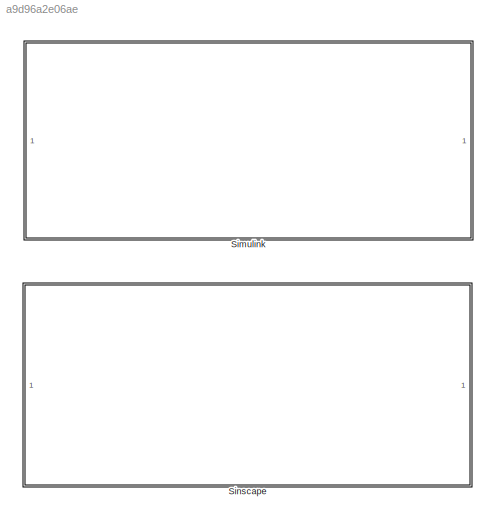
MODEL slx_a9d96a2e06ae
KIND model
CONFIG AbsTol = auto
CONFIG EnableMultiTasking = off
CONFIG FixedStep = auto
CONFIG MaxStep = auto
CONFIG MinStep = auto
CONFIG RelTol = 1e-3
CONFIG SampleTimeConstraint = Unconstrained
CONFIG SolverName = VariableStepAuto
CONFIG StartTime = 0.0
CONFIG StopTime = 0.01
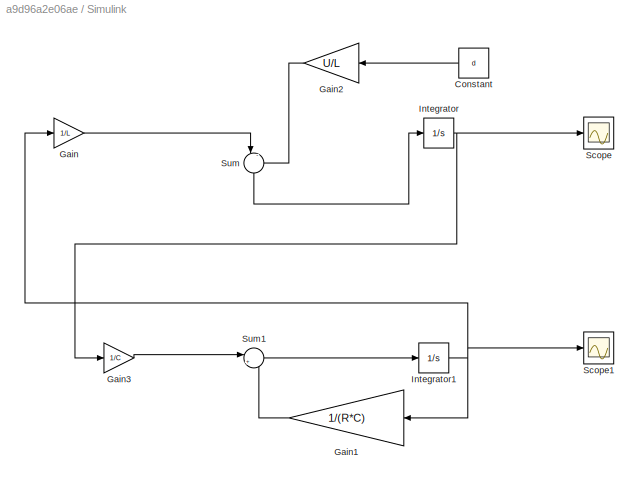
BLOCK [SubSystem] Simulink
BLOCK [Constant] Simulink/Constant
  NameLocation = top
  Value = d
BLOCK [Gain] Simulink/Gain
  Gain = 1/L
BLOCK [Gain] Simulink/Gain1
  Gain = 1/(R*C)
BLOCK [Gain] Simulink/Gain2
  Gain = U/L
BLOCK [Gain] Simulink/Gain3
  Gain = 1/C
BLOCK [Integrator] Simulink/Integrator
BLOCK [Integrator] Simulink/Integrator1
BLOCK [Scope] Simulink/Scope
  Floating = off
  NumInputPorts = 1
  ScopeSpecificationString = Simulink.scopes.TimeScopeBlockCfg('CurrentConfiguration', extmgr.ConfigurationSet(extmgr.Configuration('Core','General UI',true),extmgr.Configuration('Core','Source UI',true),extmgr.Configuration('Sources','WiredSimulink',true,'DataLoggingVariableName','ScopeData1'),extmgr.Configuration('Visuals','Time Domain',true,'SerializedDisplays',{struct('MinYLimReal','0.89007','MaxYLimReal','1.39913','YLabe...<+1419ch>
BLOCK [Scope] Simulink/Scope1
  Floating = off
  NumInputPorts = 1
  ScopeSpecificationString = Simulink.scopes.TimeScopeBlockCfg('CurrentConfiguration', extmgr.ConfigurationSet(extmgr.Configuration('Core','General UI',true),extmgr.Configuration('Core','Source UI',true),extmgr.Configuration('Sources','WiredSimulink',true,'DataLoggingVariableName','ScopeData2'),extmgr.Configuration('Visuals','Time Domain',true,'SerializedDisplays',{struct('MinYLimReal','-1.66913','MaxYLimReal','15.02219','YLa...<+1426ch>
BLOCK [Sum] Simulink/Sum
  Inputs = |-+
  NameLocation = left
BLOCK [Sum] Simulink/Sum1
  Inputs = |+-
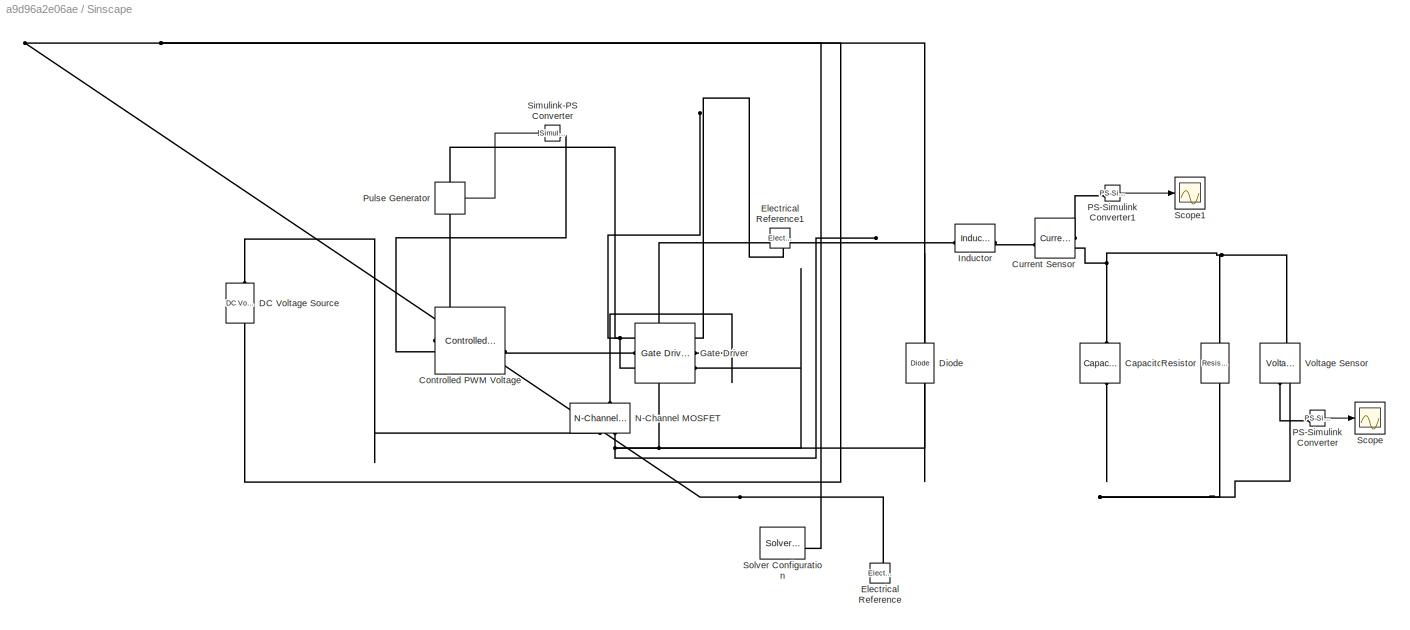
BLOCK [SubSystem] Sinscape
BLOCK [Reference] Sinscape/Capacitor  REF=fl_lib/Electrical/Electrical Elements/Capacitor
  NameLocation = left
  SourceBlock = fl_lib/Electrical/Electrical Elements/Capacitor
  SourceType = Capacitor
BLOCK [Reference] Sinscape/Controlled PWM Voltage  REF=ee_lib/Integrated Circuits/Controlled PWM
Voltage
  SourceBlock = ee_lib/Integrated Circuits/Controlled PWM\nVoltage
  SourceType = Controlled PWM\nVoltage
BLOCK [Reference] Sinscape/Current Sensor  REF=fl_lib/Electrical/Electrical Sensors/Current Sensor
  SourceBlock = fl_lib/Electrical/Electrical Sensors/Current Sensor
  SourceType = Current Sensor
BLOCK [Reference] Sinscape/DC Voltage Source  REF=ee_lib/Additional
Components/SPICE Sources/DC Voltage Source
  NameLocation = right
  SourceBlock = ee_lib/Additional\nComponents/SPICE Sources/DC Voltage Source
  SourceType = DC Voltage Source
BLOCK [Reference] Sinscape/Diode  REF=fl_lib/Electrical/Electrical Elements/Diode
  NameLocation = right
  SourceBlock = fl_lib/Electrical/Electrical Elements/Diode
  SourceType = Diode
BLOCK [Reference] Sinscape/Electrical Reference  REF=fl_lib/Electrical/Electrical Elements/Electrical Reference
  NameLocation = right
  SourceBlock = fl_lib/Electrical/Electrical Elements/Electrical Reference
  SourceType = Electrical Reference
BLOCK [Reference] Sinscape/Electrical Reference1  REF=fl_lib/Electrical/Electrical Elements/Electrical Reference
  NameLocation = right
  SourceBlock = fl_lib/Electrical/Electrical Elements/Electrical Reference
  SourceType = Electrical Reference
BLOCK [Reference] Sinscape/Gate Driver  REF=ee_lib/Semiconductors &
Converters/Gate Driver
  SourceBlock = ee_lib/Semiconductors &\nConverters/Gate Driver
  SourceType = Gate Driver
BLOCK [Reference] Sinscape/Inductor  REF=ee_lib/Passive/Inductor
  SourceBlock = ee_lib/Passive/Inductor
  SourceType = Inductor
BLOCK [Reference] Sinscape/N-Channel MOSFET  REF=ee_lib/Semiconductors &
Converters/N-Channel MOSFET
  NameLocation = right
  SourceBlock = ee_lib/Semiconductors &\nConverters/N-Channel MOSFET
  SourceType = N-Channel MOSFET
BLOCK [Reference] Sinscape/PS-Simulink Converter  REF=nesl_utility/PS-Simulink
Converter
  SourceBlock = nesl_utility/PS-Simulink\nConverter
  SourceType = PS-Simulink\nConverter
BLOCK [Reference] Sinscape/PS-Simulink Converter1  REF=nesl_utility/PS-Simulink
Converter
  SourceBlock = nesl_utility/PS-Simulink\nConverter
  SourceType = PS-Simulink\nConverter
BLOCK [DiscretePulseGenerator] Sinscape/Pulse Generator
  NameLocation = top
  Period = 0.00001
  PulseType = Time based
  PulseWidth = 40
BLOCK [Reference] Sinscape/Resistor  REF=fl_lib/Electrical/Electrical Elements/Resistor
  NameLocation = left
  SourceBlock = fl_lib/Electrical/Electrical Elements/Resistor
  SourceType = Resistor
BLOCK [Scope] Sinscape/Scope
  Floating = off
  NumInputPorts = 1
  ScopeSpecificationString = Simulink.scopes.TimeScopeBlockCfg('CurrentConfiguration', extmgr.ConfigurationSet(extmgr.Configuration('Core','General UI',true),extmgr.Configuration('Core','Source UI',true),extmgr.Configuration('Sources','WiredSimulink',true,'DataLoggingVariableName','ScopeData3'),extmgr.Configuration('Visuals','Time Domain',true,'SerializedDisplays',{struct('MinYLimReal','0.00000','MaxYLimReal','12.74889','YLab...<+1532ch>
BLOCK [Scope] Sinscape/Scope1
  Floating = off
  NumInputPorts = 1
  ScopeSpecificationString = Simulink.scopes.TimeScopeBlockCfg('CurrentConfiguration', extmgr.ConfigurationSet(extmgr.Configuration('Core','General UI',true),extmgr.Configuration('Core','Source UI',true),extmgr.Configuration('Sources','WiredSimulink',true,'DataLoggingVariableName','ScopeData4'),extmgr.Configuration('Visuals','Time Domain',true,'SerializedDisplays',{struct('MinYLimReal','-0.16554','MaxYLimReal','1.48984','YLab...<+1442ch>
BLOCK [Reference] Sinscape/Simulink-PS Converter  REF=nesl_utility/Simulink-PS
Converter
  SourceBlock = nesl_utility/Simulink-PS\nConverter
  SourceType = Simulink-PS\nConverter
BLOCK [Reference] Sinscape/Solver Configuration  REF=nesl_utility/Solver
Configuration
  SourceBlock = nesl_utility/Solver\nConfiguration
  SourceType = Solver\nConfiguration
BLOCK [Reference] Sinscape/Voltage Sensor  REF=fl_lib/Electrical/Electrical Sensors/Voltage Sensor
  LibrarySourceBlock = ee_lib/Sensors &\nTransducers/Voltage Sensor
  NameLocation = right
  SourceBlock = fl_lib/Electrical/Electrical Sensors/Voltage Sensor
  SourceType = Voltage Sensor
LINE Simulink/Constant:1 -> Simulink/Gain2:1
LINE Simulink/Gain1:1 -> Simulink/Sum1:2
LINE Simulink/Gain2:1 -> Simulink/Sum:2
LINE Simulink/Gain3:1 -> Simulink/Sum1:1
LINE Simulink/Gain:1 -> Simulink/Sum:1
NET Simulink/Integrator1:1 -> Simulink/Gain1:1, Simulink/Gain:1, Simulink/Scope1:1
NET Simulink/Integrator:1 -> Simulink/Gain3:1, Simulink/Scope:1
LINE Simulink/Sum1:1 -> Simulink/Integrator1:1
LINE Simulink/Sum:1 -> Simulink/Integrator:1
LINE Sinscape/PS-Simulink Converter1:1 -> Sinscape/Scope1:1
LINE Sinscape/PS-Simulink Converter:1 -> Sinscape/Scope:1
LINE Sinscape/Pulse Generator:1 -> Sinscape/Simulink-PS Converter:1
PNET net1: Sinscape/Capacitor:LConn1 -- Sinscape/Current Sensor:RConn2 -- Sinscape/Resistor:LConn1 -- Sinscape/Voltage Sensor:LConn1
PNET net2: Sinscape/Capacitor:RConn1 -- Sinscape/DC Voltage Source:RConn1 -- Sinscape/Diode:LConn1 -- Sinscape/Electrical Reference:LConn1 -- Sinscape/Resistor:RConn1 -- Sinscape/Solver Configuration:RConn1 -- Sinscape/Voltage Sensor:RConn2
PLINE Sinscape/Controlled PWM Voltage:LConn1 -- Sinscape/Simulink-PS Converter:RConn1
PLINE Sinscape/Controlled PWM Voltage:RConn1 -- Sinscape/Gate Driver:LConn1
PNET net3: Sinscape/Controlled PWM Voltage:RConn2 -- Sinscape/Electrical Reference1:LConn1 -- Sinscape/Gate Driver:LConn2
PLINE Sinscape/Current Sensor:LConn1 -- Sinscape/Inductor:RConn1
PLINE Sinscape/Current Sensor:RConn1 -- Sinscape/PS-Simulink Converter1:LConn1
PLINE Sinscape/DC Voltage Source:LConn1 -- Sinscape/N-Channel MOSFET:RConn1
PNET net4: Sinscape/Diode:RConn1 -- Sinscape/Gate Driver:RConn2 -- Sinscape/Inductor:LConn1 -- Sinscape/N-Channel MOSFET:RConn2
PLINE Sinscape/Gate Driver:RConn1 -- Sinscape/N-Channel MOSFET:LConn1
PLINE Sinscape/PS-Simulink Converter:LConn1 -- Sinscape/Voltage Sensor:RConn1
note: NET lines group one-source signal fan-out (src -> all destinations, sorted); 1:1 wires keep LINE; PNET lines group multi-terminal physical nets as a canonical sorted terminal list (undirected conserving connections); 2-terminal nets keep the pairwise PLINE form
